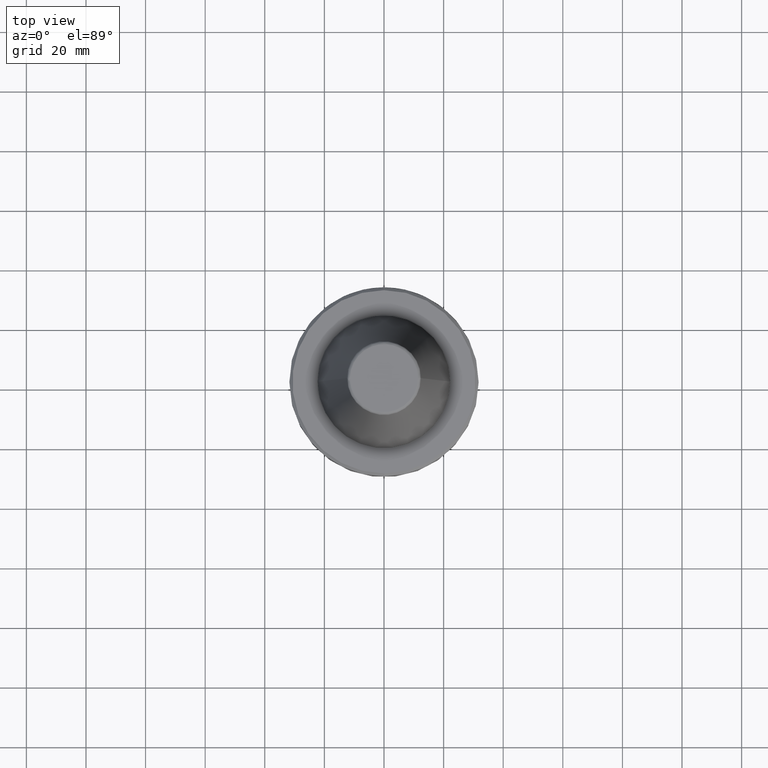
[diagram: clean part render]
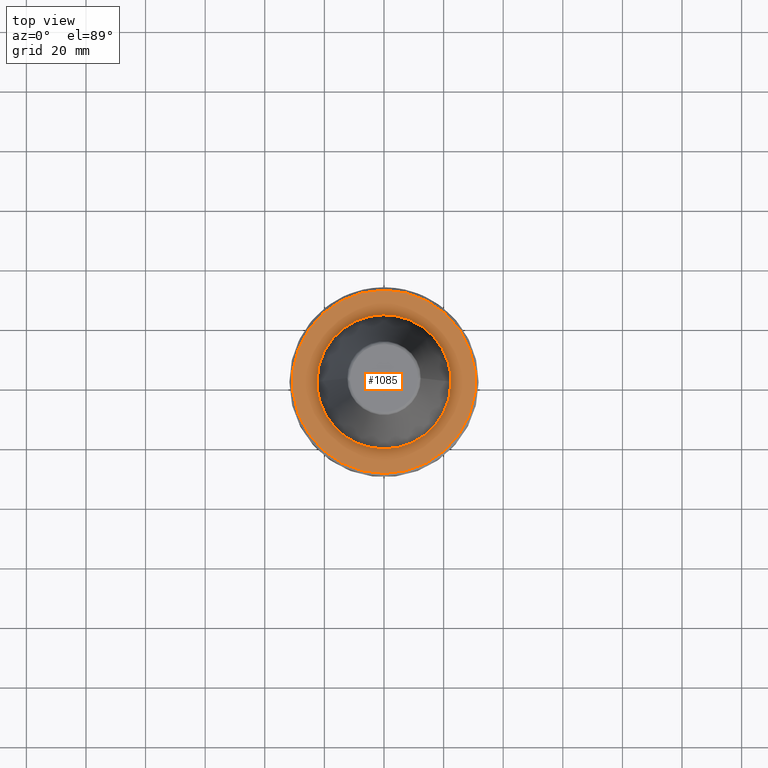
[diagram: same view with one face highlighted and labeled with its STEP entity id]
A machine part, top view. The second image highlights one B-rep face of the part: STEP entity #1085.
In plain terms, the highlighted planar face has unit normal (0, 0, 1).
Its self-contained STEP definition (entity closure, byte-faithful):
#6 = AXIS2_PLACEMENT_3D ( 'NONE', #29, #876, #86 ) ;
#29 = CARTESIAN_POINT ( 'NONE',  ( 0.0000000000000000000, 0.0000000000000000000, -3.200000000000036100 ) ) ;
#43 = DIRECTION ( 'NONE',  ( 1.000000000000000000, 0.0000000000000000000, 0.0000000000000000000 ) ) ;
#86 = DIRECTION ( 'NONE',  ( 1.000000000000000000, 0.0000000000000000000, 0.0000000000000000000 ) ) ;
#118 = EDGE_CURVE ( 'NONE', #1302, #1379, #693, .T. ) ;
#193 = ORIENTED_EDGE ( 'NONE', *, *, #982, .T. ) ;
#273 = EDGE_CURVE ( 'NONE', #1379, #1302, #1393, .T. ) ;
#279 = B_SPLINE_CURVE_WITH_KNOTS ( 'NONE', 3,
 ( #1044, #1045, #1038, #1037, #1036, #1035, #1033, #1032, #1031, #1030, #1028, #1026, #1025, #1022, #1021, #1019, #1018, #1015, #1013, #1012, #1011, #1010, #1009, #1008, #1007, #1006, #1005, #1003, #1000, #997, #993, #991, #988, #987, #985, #983, #981, #980, #975, #973, #972, #971, #969, #968, #967, #965, #964, #963, #962, #961, #958, #955, #953, #951, #950, #948, #946, #944, #943, #942, #941, #937, #936, #933, #931, #929, #928, #926, #923, #922, #921, #918, #917, #916, #915, #913, #912, #910, #908, #905, #902, #901, #898, #897, #896, #895, #894, #893, #892, #891, #890, #889, #888, #882, #881, #880, #878, #877, #875, #874, #872, #870, #869, #867, #866, #864 ),
 .UNSPECIFIED., .F., .F.,
 ( 4, 1, 1, 1, 1, 1, 2, 2, 1, 1, 1, 1, 2, 2, 1, 1, 1, 2, 2, 2, 1, 1, 1, 2, 2, 1, 1, 1, 1, 2, 2, 1, 1, 1, 1, 1, 2, 2, 2, 1, 1, 1, 1, 1, 2, 2, 1, 1, 1, 1, 2, 2, 1, 1, 1, 2, 2, 2, 1, 1, 1, 2, 2, 1, 1, 1, 1, 2, 2, 1, 1, 1, 1, 1, 2, 2, 4 ),
 ( 0.0000000000000000000, 0.03124999999999908400, 0.04687499999999860500, 0.05468749999999836900, 0.05859374999999825800, 0.06054687499999819600, 0.06152343749999818900, 0.06249999999999818200, 0.09374999999999732200, 0.1093749999999968900, 0.1171874999999966700, 0.1210937499999965400, 0.1230468749999965400, 0.1249999999999965300, 0.1562499999999963600, 0.1718749999999962500, 0.1796874999999961700, 0.1835937499999960900, 0.1874999999999960000, 0.2499999999999953400, 0.2812499999999949500, 0.2968749999999948400, 0.3046874999999947800, 0.3085937499999947800, 0.3124999999999947800, 0.3437499999999951200, 0.3593749999999953400, 0.3671874999999953900, 0.3710937499999954500, 0.3730468749999955000, 0.3749999999999955600, 0.4062499999999958400, 0.4218749999999960000, 0.4296874999999960600, 0.4335937499999960600, 0.4355468749999960600, 0.4365234374999960600, 0.4374999999999960000, 0.4999999999999953400, 0.5312499999999950000, 0.5468749999999947800, 0.5546874999999946700, 0.5585937499999946700, 0.5605468749999945600, 0.5615234374999945600, 0.5624999999999944500, 0.5937499999999942300, 0.6093749999999941200, 0.6171874999999940000, 0.6210937499999938900, 0.6230468749999940000, 0.6249999999999940000, 0.6562499999999947800, 0.6718749999999952300, 0.6796874999999954500, 0.6835937499999955600, 0.6874999999999955600, 0.7499999999999982200, 0.7812499999999995600, 0.7968750000000002200, 0.8046875000000005600, 0.8085937500000007800, 0.8125000000000008900, 0.8437500000000022200, 0.8593750000000028900, 0.8671875000000032200, 0.8710937500000033300, 0.8730468750000034400, 0.8750000000000034400, 0.9062500000000028900, 0.9218750000000026600, 0.9296875000000025500, 0.9335937500000024400, 0.9355468750000023300, 0.9365234375000023300, 0.9375000000000022200, 1.000000000000000000 ),
 .UNSPECIFIED. ) ;
#333 = CARTESIAN_POINT ( 'NONE',  ( 22.50000000000000400, 0.0000000000000000000, -3.199999999999999300 ) ) ;
#405 = CARTESIAN_POINT ( 'NONE',  ( -22.50000000000000400, 2.755455298081544800E-015, -3.199999999999999300 ) ) ;
#425 = CARTESIAN_POINT ( 'NONE',  ( 0.0000000000000000000, 30.74999999999994300, -3.200000000000036100 ) ) ;
#458 = DIRECTION ( 'NONE',  ( -0.0000000000000000000, -0.0000000000000000000, 1.000000000000000000 ) ) ;
#484 = CARTESIAN_POINT ( 'NONE',  ( 0.0000000000000000000, 0.0000000000000000000, -3.200000000000036100 ) ) ;
#492 = CARTESIAN_POINT ( 'NONE',  ( 3.827021247335483600E-015, -30.74999999999994300, -3.200000000000036100 ) ) ;
#559 = EDGE_CURVE ( 'NONE', #1419, #1548, #1107, .T. ) ;
#583 = FACE_BOUND ( 'NONE', #1142, .T. ) ;
#610 = ORIENTED_EDGE ( 'NONE', *, *, #118, .T. ) ;
#693 = CIRCLE ( 'NONE', #996, 30.74999999999994300 ) ;
#754 = DIRECTION ( 'NONE',  ( 1.000000000000000000, 0.0000000000000000000, -0.0000000000000000000 ) ) ;
#756 = DIRECTION ( 'NONE',  ( 0.0000000000000000000, 0.0000000000000000000, 1.000000000000000000 ) ) ;
#759 = PLANE ( 'NONE',  #986 ) ;
#812 = CARTESIAN_POINT ( 'NONE',  ( 0.0000000000000000000, 0.0000000000000000000, -3.200000000000000200 ) ) ;
#837 = ORIENTED_EDGE ( 'NONE', *, *, #273, .T. ) ;
#864 = CARTESIAN_POINT ( 'NONE',  ( -22.50000000000000400, 2.755455298081544800E-015, -3.199999999999999300 ) ) ;
#866 = CARTESIAN_POINT ( 'NONE',  ( -22.50000000000000700, -1.376388306158772500, -3.200000000000000600 ) ) ;
#867 = CARTESIAN_POINT ( 'NONE',  ( -22.37479026312430700, -2.741111199249898400, -3.200000000000000600 ) ) ;
#869 = CARTESIAN_POINT ( 'NONE',  ( -22.12045798509555200, -4.115310202398622300, -3.200000000000000200 ) ) ;
#870 = CARTESIAN_POINT ( 'NONE',  ( -22.11603594838243900, -4.139014538617989700, -3.200000000000000600 ) ) ;
#872 = CARTESIAN_POINT ( 'NONE',  ( -22.10760170058084000, -4.183831549485550900, -3.200000000000000200 ) ) ;
#874 = CARTESIAN_POINT ( 'NONE',  ( -22.09485092206732700, -4.251028217309717600, -3.200000000000000600 ) ) ;
#875 = CARTESIAN_POINT ( 'NONE',  ( -22.06440325785796100, -4.407618502892575000, -3.200000000000000200 ) ) ;
#876 = DIRECTION ( 'NONE',  ( -0.0000000000000000000, -0.0000000000000000000, 1.000000000000000000 ) ) ;
#877 = CARTESIAN_POINT ( 'NONE',  ( -22.00072453872795100, -4.719991316697491600, -3.200000000000000600 ) ) ;
#878 = CARTESIAN_POINT ( 'NONE',  ( -21.86223353762273500, -5.341505914864100600, -3.200000000000000600 ) ) ;
#880 = CARTESIAN_POINT ( 'NONE',  ( -21.54071728403163600, -6.571610993424445500, -3.200000000000000600 ) ) ;
#881 = CARTESIAN_POINT ( 'NONE',  ( -21.18878749287234700, -7.603831144579803700, -3.199999999999998800 ) ) ;
#882 = CARTESIAN_POINT ( 'NONE',  ( -20.90345235396920400, -8.324524703927284700, -3.199999999999999700 ) ) ;
#888 = CARTESIAN_POINT ( 'NONE',  ( -20.88510905071626700, -8.370451108368008900, -3.199999999999999700 ) ) ;
#889 = CARTESIAN_POINT ( 'NONE',  ( -20.84958280862066700, -8.458563634144654800, -3.200000000000000600 ) ) ;
#890 = CARTESIAN_POINT ( 'NONE',  ( -20.79589492657008900, -8.590524805360397300, -3.200000000000000200 ) ) ;
#891 = CARTESIAN_POINT ( 'NONE',  ( -20.66783356943510700, -8.896980882719226700, -3.200000000000000200 ) ) ;
#892 = CARTESIAN_POINT ( 'NONE',  ( -20.40055232576401100, -9.504079748858595500, -3.199999999999999700 ) ) ;
#893 = CARTESIAN_POINT ( 'NONE',  ( -19.82135572081725200, -10.69502432682423000, -3.200000000000000600 ) ) ;
#894 = CARTESIAN_POINT ( 'NONE',  ( -19.24838585782649900, -11.67597141482940200, -3.199999999999999700 ) ) ;
#895 = CARTESIAN_POINT ( 'NONE',  ( -18.78040064549380300, -12.39175045570773800, -3.200000000000000600 ) ) ;
#896 = CARTESIAN_POINT ( 'NONE',  ( -18.72563884435658800, -12.47437238289159500, -3.200000000000000200 ) ) ;
#897 = CARTESIAN_POINT ( 'NONE',  ( -18.61742605471202700, -12.63533988221470800, -3.199999999999999700 ) ) ;
#898 = CARTESIAN_POINT ( 'NONE',  ( -18.45365423866372400, -12.87560569879659900, -3.200000000000001100 ) ) ;
#899 = FACE_OUTER_BOUND ( 'NONE', #1042, .T. ) ;
#901 = CARTESIAN_POINT ( 'NONE',  ( -18.06135158014722800, -13.42792791066820300, -3.200000000000000600 ) ) ;
#902 = CARTESIAN_POINT ( 'NONE',  ( -17.23607257883263300, -14.49938022713351800, -3.200000000000000200 ) ) ;
#905 = CARTESIAN_POINT ( 'NONE',  ( -16.45896426179448100, -15.36086717162741000, -3.200000000000001100 ) ) ;
#908 = CARTESIAN_POINT ( 'NONE',  ( -14.81177920650302200, -17.00797338683712900, -3.199999999999999300 ) ) ;
#910 = CARTESIAN_POINT ( 'NONE',  ( -13.61204652640028800, -17.98264380950038800, -3.200000000000000200 ) ) ;
#912 = CARTESIAN_POINT ( 'NONE',  ( -12.23098025896354500, -18.88550870197710900, -3.200000000000000200 ) ) ;
#913 = CARTESIAN_POINT ( 'NONE',  ( -12.15280497094398100, -18.93590339580075400, -3.199999999999999700 ) ) ;
#915 = CARTESIAN_POINT ( 'NONE',  ( -11.99256734168715800, -19.03780993567515600, -3.200000000000000200 ) ) ;
#916 = CARTESIAN_POINT ( 'NONE',  ( -11.75138774876684200, -19.18907189198004900, -3.200000000000000200 ) ) ;
#917 = CARTESIAN_POINT ( 'NONE',  ( -11.18287332204048700, -19.53083148214458500, -3.200000000000000600 ) ) ;
#918 = CARTESIAN_POINT ( 'NONE',  ( -10.02279629560528400, -20.16961076428609100, -3.200000000000000600 ) ) ;
#921 = CARTESIAN_POINT ( 'NONE',  ( -8.988933404976533500, -20.64043889494298900, -3.199999999999999700 ) ) ;
#922 = CARTESIAN_POINT ( 'NONE',  ( -8.237955812652499400, -20.93772414133978200, -3.199999999999999700 ) ) ;
#923 = CARTESIAN_POINT ( 'NONE',  ( -8.197263642347373000, -20.95368502148340900, -3.199999999999999700 ) ) ;
#926 = CARTESIAN_POINT ( 'NONE',  ( -8.112282896148109000, -20.98673507276421500, -3.200000000000000200 ) ) ;
#928 = CARTESIAN_POINT ( 'NONE',  ( -7.984698353444732000, -21.03591195338748700, -3.200000000000000200 ) ) ;
#929 = CARTESIAN_POINT ( 'NONE',  ( -7.686207123305462300, -21.14787063408966000, -3.200000000000000600 ) ) ;
#931 = CARTESIAN_POINT ( 'NONE',  ( -7.086048807701388300, -21.36063849915201700, -3.200000000000001100 ) ) ;
#933 = CARTESIAN_POINT ( 'NONE',  ( -5.873028755191068500, -21.74157624390884200, -3.200000000000001100 ) ) ;
#936 = CARTESIAN_POINT ( 'NONE',  ( -4.811519987949943700, -21.99164062164117100, -3.199999999999999700 ) ) ;
#937 = CARTESIAN_POINT ( 'NONE',  ( -4.071751450877116900, -22.12851860711453300, -3.199999999999999700 ) ) ;
#941 = CARTESIAN_POINT ( 'NONE',  ( -4.051866326836864700, -22.13216683465148900, -3.199999999999999700 ) ) ;
#942 = CARTESIAN_POINT ( 'NONE',  ( -4.009555819172765800, -22.13987114982767300, -3.200000000000000200 ) ) ;
#943 = CARTESIAN_POINT ( 'NONE',  ( -3.946081902448917300, -22.15133589248955200, -3.200000000000000600 ) ) ;
#944 = CARTESIAN_POINT ( 'NONE',  ( -3.797919010166013600, -22.17744484798386800, -3.200000000000001100 ) ) ;
#946 = CARTESIAN_POINT ( 'NONE',  ( -3.501364879224580000, -22.22709431610556100, -3.200000000000000600 ) ) ;
#948 = CARTESIAN_POINT ( 'NONE',  ( -2.907343231839132800, -22.31611948088118800, -3.200000000000000600 ) ) ;
#950 = CARTESIAN_POINT ( 'NONE',  ( -1.715646395057947200, -22.45307472456143200, -3.200000000000000600 ) ) ;
#951 = CARTESIAN_POINT ( 'NONE',  ( -0.6879287486564484900, -22.50001621479418300, -3.200000000000000200 ) ) ;
#953 = CARTESIAN_POINT ( 'NONE',  ( 1.375857497312903900, -22.49996757041163400, -3.199999999999999300 ) ) ;
#955 = CARTESIAN_POINT ( 'NONE',  ( 2.741286511513688400, -22.37475781689234500, -3.199999999999999700 ) ) ;
#958 = CARTESIAN_POINT ( 'NONE',  ( 4.115307463144500100, -22.12045849206793200, -3.200000000000000600 ) ) ;
#961 = CARTESIAN_POINT ( 'NONE',  ( 4.139014538615635200, -22.11603594838316400, -3.200000000000000200 ) ) ;
#962 = CARTESIAN_POINT ( 'NONE',  ( 4.183831549480899500, -22.10760170058227900, -3.200000000000000200 ) ) ;
#963 = CARTESIAN_POINT ( 'NONE',  ( 4.251028217301676900, -22.09485092206981000, -3.200000000000000200 ) ) ;
#964 = CARTESIAN_POINT ( 'NONE',  ( 4.407618502877016700, -22.06440325786277500, -3.200000000000000600 ) ) ;
#965 = CARTESIAN_POINT ( 'NONE',  ( 4.719991316668444600, -22.00072453873692200, -3.200000000000000200 ) ) ;
#967 = CARTESIAN_POINT ( 'NONE',  ( 5.341505914814308500, -21.86223353763812900, -3.199999999999999700 ) ) ;
#968 = CARTESIAN_POINT ( 'NONE',  ( 6.571610993358049800, -21.54071728405216400, -3.200000000000000600 ) ) ;
#969 = CARTESIAN_POINT ( 'NONE',  ( 7.603831144541866000, -21.18878749288407800, -3.200000000000000200 ) ) ;
#971 = CARTESIAN_POINT ( 'NONE',  ( 8.324524703929661500, -20.90345235396846500, -3.200000000000000600 ) ) ;
#972 = CARTESIAN_POINT ( 'NONE',  ( 8.370451108365493600, -20.88510905071769100, -3.200000000000001100 ) ) ;
#973 = CARTESIAN_POINT ( 'NONE',  ( 8.458563634139736100, -20.84958280862343500, -3.200000000000000600 ) ) ;
#975 = CARTESIAN_POINT ( 'NONE',  ( 8.590524805351991600, -20.79589492657481400, -3.199999999999999700 ) ) ;
#978 = ORIENTED_EDGE ( 'NONE', *, *, #559, .T. ) ;
#980 = CARTESIAN_POINT ( 'NONE',  ( 8.896980882703543300, -20.66783356944393200, -3.199999999999999300 ) ) ;
#981 = CARTESIAN_POINT ( 'NONE',  ( 9.504079748831721000, -20.40055232577914500, -3.200000000000000600 ) ) ;
#982 = EDGE_CURVE ( 'NONE', #1548, #1419, #279, .T. ) ;
#983 = CARTESIAN_POINT ( 'NONE',  ( 10.69502432678837800, -19.82135572083744200, -3.199999999999999700 ) ) ;
#985 = CARTESIAN_POINT ( 'NONE',  ( 11.67597141480891300, -19.24838585783804100, -3.200000000000000600 ) ) ;
#986 = AXIS2_PLACEMENT_3D ( 'NONE', #812, #756, #754 ) ;
#987 = CARTESIAN_POINT ( 'NONE',  ( 12.39175045571029600, -18.78040064549236700, -3.200000000000000200 ) ) ;
#988 = CARTESIAN_POINT ( 'NONE',  ( 12.47437238289376500, -18.72563884435562500, -3.200000000000000600 ) ) ;
#991 = CARTESIAN_POINT ( 'NONE',  ( 12.63533988221884200, -18.61742605471019700, -3.200000000000000200 ) ) ;
#993 = CARTESIAN_POINT ( 'NONE',  ( 12.87560569880346700, -18.45365423866068300, -3.200000000000000600 ) ) ;
#996 = AXIS2_PLACEMENT_3D ( 'NONE', #484, #458, #43 ) ;
#997 = CARTESIAN_POINT ( 'NONE',  ( 13.42792791067997600, -18.06135158014202000, -3.199999999999999700 ) ) ;
#1000 = CARTESIAN_POINT ( 'NONE',  ( 14.49938022714922100, -17.23607257882569900, -3.199999999999999300 ) ) ;
#1001 = CARTESIAN_POINT ( 'NONE',  ( -21.36063849916189700, 7.086048807666240500, -3.199999999999999300 ) ) ;
#1003 = CARTESIAN_POINT ( 'NONE',  ( 15.36086717163637700, -16.45896426179050900, -3.199999999999999700 ) ) ;
#1005 = CARTESIAN_POINT ( 'NONE',  ( 17.00797338681919900, -14.81177920651095200, -3.200000000000000600 ) ) ;
#1006 = CARTESIAN_POINT ( 'NONE',  ( 17.98264380952407700, -13.61204652636657500, -3.199999999999999700 ) ) ;
#1007 = CARTESIAN_POINT ( 'NONE',  ( 18.88550870197563500, -12.23098025896565000, -3.200000000000000200 ) ) ;
#1008 = CARTESIAN_POINT ( 'NONE',  ( 18.93590339580105900, -12.15280497094321500, -3.200000000000000200 ) ) ;
#1009 = CARTESIAN_POINT ( 'NONE',  ( 19.03780993567572800, -11.99256734168571200, -3.200000000000000200 ) ) ;
#1010 = CARTESIAN_POINT ( 'NONE',  ( 19.18907189198100100, -11.75138774876444200, -3.200000000000001100 ) ) ;
#1011 = CARTESIAN_POINT ( 'NONE',  ( 19.53083148214621900, -11.18287332203636600, -3.200000000000000200 ) ) ;
#1012 = CARTESIAN_POINT ( 'NONE',  ( 20.16961076428826500, -10.02279629559978100, -3.199999999999998800 ) ) ;
#1013 = CARTESIAN_POINT ( 'NONE',  ( 20.64043889494423200, -8.988933404973398200, -3.200000000000001100 ) ) ;
#1015 = CARTESIAN_POINT ( 'NONE',  ( 20.93772414133970000, -8.237955812652693100, -3.200000000000000200 ) ) ;
#1018 = CARTESIAN_POINT ( 'NONE',  ( 20.95368502148340500, -8.197263642347369500, -3.199999999999999700 ) ) ;
#1019 = CARTESIAN_POINT ( 'NONE',  ( 20.98673507276421500, -8.112282896148103700, -3.200000000000000200 ) ) ;
#1021 = CARTESIAN_POINT ( 'NONE',  ( 21.03591195338748300, -7.984698353444730200, -3.199999999999999300 ) ) ;
#1022 = CARTESIAN_POINT ( 'NONE',  ( 21.14787063408966400, -7.686207123305460500, -3.200000000000000600 ) ) ;
#1025 = CARTESIAN_POINT ( 'NONE',  ( 21.36063849915200700, -7.086048807701382100, -3.199999999999998800 ) ) ;
#1026 = CARTESIAN_POINT ( 'NONE',  ( 21.74157624390884500, -5.873028755191072900, -3.200000000000000200 ) ) ;
#1028 = CARTESIAN_POINT ( 'NONE',  ( 21.99164062164117800, -4.811519987949947300, -3.200000000000000600 ) ) ;
#1030 = CARTESIAN_POINT ( 'NONE',  ( 22.12851860711453600, -4.071751450877114200, -3.200000000000000200 ) ) ;
#1031 = CARTESIAN_POINT ( 'NONE',  ( 22.13216582914422800, -4.051871761185046800, -3.199999999999999300 ) ) ;
#1032 = CARTESIAN_POINT ( 'NONE',  ( 22.13986916256529000, -4.009566559498702000, -3.199999999999999300 ) ) ;
#1033 = CARTESIAN_POINT ( 'NONE',  ( 22.15133245634663300, -3.946100473371058700, -3.199999999999999700 ) ) ;
#1035 = CARTESIAN_POINT ( 'NONE',  ( 22.17743819738469600, -3.797954953886299600, -3.200000000000000600 ) ) ;
#1036 = CARTESIAN_POINT ( 'NONE',  ( 22.22708190165376200, -3.501431974169107800, -3.200000000000000200 ) ) ;
#1037 = CARTESIAN_POINT ( 'NONE',  ( 22.31609819896382200, -2.907458251744042200, -3.200000000000000600 ) ) ;
#1038 = CARTESIAN_POINT ( 'NONE',  ( 22.45304634867161300, -1.715799754931167900, -3.200000000000000200 ) ) ;
#1042 = EDGE_LOOP ( 'NONE', ( #837, #610 ) ) ;
#1044 = CARTESIAN_POINT ( 'NONE',  ( 22.50000000000000400, 0.0000000000000000000, -3.199999999999999300 ) ) ;
#1045 = CARTESIAN_POINT ( 'NONE',  ( 22.49999999999999600, -0.6880163828697204400, -3.199999999999998800 ) ) ;
#1085 = ADVANCED_FACE ( 'NONE', ( #583, #899 ), #759, .T. ) ;
#1107 = B_SPLINE_CURVE_WITH_KNOTS ( 'NONE', 3,
 ( #1552, #1508, #1512, #1507, #1505, #1504, #1534, #1532, #1530, #1529, #1527, #1526, #1001, #1560, #1503, #1502, #1501, #1500, #1498, #1496, #1495, #1491, #1488, #1487, #1485, #1484, #1483, #1481, #1479, #1478, #1477, #1475, #1472, #1470, #1468, #1467, #1465, #1463, #1462, #1458, #1457, #1456, #1455, #1454, #1453, #1451, #1450, #1448, #1446, #1444, #1440, #1436, #1435, #1434, #1433, #1432, #1431, #1430, #1429, #1427, #1426, #1425, #1421, #1420, #1417, #1416, #1413, #1411, #1409, #1408, #1407, #1406, #1405, #1403, #1401, #1399, #1398, #1396, #1394, #1391, #1389, #1388, #1387, #1386, #1385, #1381, #1380, #1378, #1376, #1375, #1373, #1371, #1369, #1368, #1367, #1366, #1365, #1364, #1363, #1360, #1358, #1356, #1353, #1351, #1350, #1349 ),
 .UNSPECIFIED., .F., .F.,
 ( 4, 1, 1, 1, 1, 1, 2, 2, 1, 1, 1, 1, 2, 2, 1, 1, 1, 2, 2, 2, 1, 1, 1, 2, 2, 1, 1, 1, 1, 2, 2, 1, 1, 1, 1, 1, 2, 2, 2, 1, 1, 1, 1, 1, 2, 2, 1, 1, 1, 1, 2, 2, 1, 1, 1, 2, 2, 2, 1, 1, 1, 2, 2, 1, 1, 1, 1, 2, 2, 1, 1, 1, 1, 1, 2, 2, 4 ),
 ( 0.0000000000000000000, 0.03124999999999839000, 0.04687499999999758500, 0.05468749999999717600, 0.05859374999999699500, 0.06054687499999689800, 0.06152343749999685700, 0.06249999999999680800, 0.09374999999999644700, 0.1093749999999962800, 0.1171874999999962000, 0.1210937499999961300, 0.1230468749999961400, 0.1249999999999961400, 0.1562499999999958900, 0.1718749999999958400, 0.1796874999999957800, 0.1835937499999957800, 0.1874999999999957800, 0.2499999999999961100, 0.2812499999999963400, 0.2968749999999964500, 0.3046874999999965000, 0.3085937499999965600, 0.3124999999999965600, 0.3437499999999969500, 0.3593749999999971700, 0.3671874999999973400, 0.3710937499999974500, 0.3730468749999974500, 0.3749999999999974500, 0.4062499999999965000, 0.4218749999999960000, 0.4296874999999957800, 0.4335937499999956700, 0.4355468749999956100, 0.4365234374999956100, 0.4374999999999956100, 0.4999999999999944500, 0.5312499999999938900, 0.5468749999999936700, 0.5546874999999936700, 0.5585937499999935600, 0.5605468749999935600, 0.5615234374999934500, 0.5624999999999934500, 0.5937499999999932300, 0.6093749999999931200, 0.6171874999999931200, 0.6210937499999930100, 0.6230468749999930100, 0.6249999999999930100, 0.6562499999999930100, 0.6718749999999931200, 0.6796874999999932300, 0.6835937499999932300, 0.6874999999999932300, 0.7499999999999935600, 0.7812499999999936700, 0.7968749999999937800, 0.8046874999999938900, 0.8085937499999938900, 0.8124999999999938900, 0.8437499999999942300, 0.8593749999999944500, 0.8671874999999946700, 0.8710937499999947800, 0.8730468749999948900, 0.8749999999999950000, 0.9062499999999963400, 0.9218749999999971100, 0.9296874999999975600, 0.9335937499999976700, 0.9355468749999977800, 0.9365234374999977800, 0.9374999999999978900, 1.000000000000000000 ),
 .UNSPECIFIED. ) ;
#1142 = EDGE_LOOP ( 'NONE', ( #978, #193 ) ) ;
#1302 = VERTEX_POINT ( 'NONE', #492 ) ;
#1349 = CARTESIAN_POINT ( 'NONE',  ( 22.50000000000000400, 0.0000000000000000000, -3.199999999999999300 ) ) ;
#1350 = CARTESIAN_POINT ( 'NONE',  ( 22.50000000000000400, 1.376388306145680500, -3.200000000000000200 ) ) ;
#1351 = CARTESIAN_POINT ( 'NONE',  ( 22.37479026312431400, 2.741111199236805400, -3.200000000000000600 ) ) ;
#1353 = CARTESIAN_POINT ( 'NONE',  ( 22.12045798509555900, 4.115310202398825700, -3.200000000000000600 ) ) ;
#1356 = CARTESIAN_POINT ( 'NONE',  ( 22.11603594838275600, 4.139014538616730300, -3.200000000000001100 ) ) ;
#1358 = CARTESIAN_POINT ( 'NONE',  ( 22.10760170058146200, 4.183831549483062200, -3.200000000000000200 ) ) ;
#1360 = CARTESIAN_POINT ( 'NONE',  ( 22.09485092206839200, 4.251028217305421500, -3.199999999999999700 ) ) ;
#1363 = CARTESIAN_POINT ( 'NONE',  ( 22.06440325786003600, 4.407618502884258900, -3.200000000000000200 ) ) ;
#1364 = CARTESIAN_POINT ( 'NONE',  ( 22.00072453873180600, 4.719991316681966300, -3.200000000000000200 ) ) ;
#1365 = CARTESIAN_POINT ( 'NONE',  ( 21.86223353762935800, 5.341505914837489000, -3.200000000000000600 ) ) ;
#1366 = CARTESIAN_POINT ( 'NONE',  ( 21.54071728404044400, 6.571610993388965500, -3.200000000000000200 ) ) ;
#1367 = CARTESIAN_POINT ( 'NONE',  ( 21.18878749287739200, 7.603831144559534600, -3.200000000000000600 ) ) ;
#1368 = CARTESIAN_POINT ( 'NONE',  ( 20.90345235396888100, 8.324524703928553000, -3.200000000000000200 ) ) ;
#1369 = CARTESIAN_POINT ( 'NONE',  ( 20.88510905071724400, 8.370451108366499000, -3.200000000000001100 ) ) ;
#1371 = CARTESIAN_POINT ( 'NONE',  ( 20.84958280862257900, 8.458563634141711400, -3.200000000000000200 ) ) ;
#1373 = CARTESIAN_POINT ( 'NONE',  ( 20.79589492657334300, 8.590524805355373800, -3.199999999999999300 ) ) ;
#1375 = CARTESIAN_POINT ( 'NONE',  ( 20.66783356944120300, 8.896980882709847500, -3.200000000000000200 ) ) ;
#1376 = CARTESIAN_POINT ( 'NONE',  ( 20.40055232577446300, 9.504079748842523000, -3.200000000000000600 ) ) ;
#1378 = CARTESIAN_POINT ( 'NONE',  ( 19.82135572083119300, 10.69502432680279600, -3.200000000000000600 ) ) ;
#1379 = VERTEX_POINT ( 'NONE', #425 ) ;
#1380 = CARTESIAN_POINT ( 'NONE',  ( 19.24838585783446000, 11.67597141481715200, -3.199999999999999700 ) ) ;
#1381 = CARTESIAN_POINT ( 'NONE',  ( 18.78040064549280100, 12.39175045570927500, -3.199999999999998800 ) ) ;
#1385 = CARTESIAN_POINT ( 'NONE',  ( 18.72563884435662000, 12.47437238289156800, -3.199999999999999300 ) ) ;
#1386 = CARTESIAN_POINT ( 'NONE',  ( 18.61742605471209400, 12.63533988221464600, -3.199999999999999700 ) ) ;
#1387 = CARTESIAN_POINT ( 'NONE',  ( 18.45365423866382000, 12.87560569879649600, -3.200000000000000200 ) ) ;
#1388 = CARTESIAN_POINT ( 'NONE',  ( 18.06135158014742400, 13.42792791066801300, -3.200000000000000600 ) ) ;
#1389 = CARTESIAN_POINT ( 'NONE',  ( 17.23607257883289300, 14.49938022713325700, -3.200000000000000200 ) ) ;
#1391 = CARTESIAN_POINT ( 'NONE',  ( 16.45896426179462000, 15.36086717162726200, -3.199999999999999700 ) ) ;
#1393 = CIRCLE ( 'NONE', #6, 30.74999999999994300 ) ;
#1394 = CARTESIAN_POINT ( 'NONE',  ( 14.81177920650271000, 17.00797338683744500, -3.200000000000000600 ) ) ;
#1396 = CARTESIAN_POINT ( 'NONE',  ( 13.61204652639695000, 17.98264380950372400, -3.200000000000000200 ) ) ;
#1398 = CARTESIAN_POINT ( 'NONE',  ( 12.23098025896375600, 18.88550870197690300, -3.199999999999999700 ) ) ;
#1399 = CARTESIAN_POINT ( 'NONE',  ( 12.15280497093997500, 18.93590339580323000, -3.200000000000000200 ) ) ;
#1401 = CARTESIAN_POINT ( 'NONE',  ( 11.99256734167953400, 19.03780993567986700, -3.199999999999999300 ) ) ;
#1403 = CARTESIAN_POINT ( 'NONE',  ( 11.75138774875418000, 19.18907189198790100, -3.200000000000001100 ) ) ;
#1405 = CARTESIAN_POINT ( 'NONE',  ( 11.18287332201877700, 19.53083148215803900, -3.200000000000000600 ) ) ;
#1406 = CARTESIAN_POINT ( 'NONE',  ( 10.02279629557633300, 20.16961076430403600, -3.200000000000000600 ) ) ;
#1407 = CARTESIAN_POINT ( 'NONE',  ( 8.988933404959995600, 20.64043889495324200, -3.200000000000000600 ) ) ;
#1408 = CARTESIAN_POINT ( 'NONE',  ( 8.237955812653522600, 20.93772414133914200, -3.199999999999999700 ) ) ;
#1409 = CARTESIAN_POINT ( 'NONE',  ( 8.197263642342381500, 20.95368502148494400, -3.199999999999999700 ) ) ;
#1411 = CARTESIAN_POINT ( 'NONE',  ( 8.112282896138385300, 20.98673507276721400, -3.200000000000000200 ) ) ;
#1413 = CARTESIAN_POINT ( 'NONE',  ( 7.984698353428139100, 21.03591195339260300, -3.200000000000000200 ) ) ;
#1416 = CARTESIAN_POINT ( 'NONE',  ( 7.686207123274499500, 21.14787063409919600, -3.200000000000000600 ) ) ;
#1417 = CARTESIAN_POINT ( 'NONE',  ( 7.086048807648322300, 21.36063849916836300, -3.200000000000000600 ) ) ;
#1419 = VERTEX_POINT ( 'NONE', #405 ) ;
#1420 = CARTESIAN_POINT ( 'NONE',  ( 5.873028755120320600, 21.74157624393063400, -3.200000000000000600 ) ) ;
#1421 = CARTESIAN_POINT ( 'NONE',  ( 4.811519987909519200, 21.99164062165363400, -3.200000000000000200 ) ) ;
#1425 = CARTESIAN_POINT ( 'NONE',  ( 4.071751450878374500, 22.12851860711415200, -3.200000000000000200 ) ) ;
#1426 = CARTESIAN_POINT ( 'NONE',  ( 4.051866326834534100, 22.13216683465163800, -3.200000000000001100 ) ) ;
#1427 = CARTESIAN_POINT ( 'NONE',  ( 4.009555819168163300, 22.13987114982794000, -3.199999999999999700 ) ) ;
#1429 = CARTESIAN_POINT ( 'NONE',  ( 3.946081902440961000, 22.15133589249003200, -3.200000000000000600 ) ) ;
#1430 = CARTESIAN_POINT ( 'NONE',  ( 3.797919010150632600, 22.17744484798479100, -3.200000000000000600 ) ) ;
#1431 = CARTESIAN_POINT ( 'NONE',  ( 3.501364879195867800, 22.22709431610727600, -3.200000000000000600 ) ) ;
#1432 = CARTESIAN_POINT ( 'NONE',  ( 2.907343231789928200, 22.31611948088413700, -3.200000000000001100 ) ) ;
#1433 = CARTESIAN_POINT ( 'NONE',  ( 1.715646394992351700, 22.45307472456536100, -3.200000000000000600 ) ) ;
#1434 = CARTESIAN_POINT ( 'NONE',  ( 0.6879287486189594700, 22.50001621479642500, -3.199999999999999300 ) ) ;
#1435 = CARTESIAN_POINT ( 'NONE',  ( -1.375857497237935400, 22.49996757040714000, -3.199999999999999700 ) ) ;
#1436 = CARTESIAN_POINT ( 'NONE',  ( -2.741286511587084400, 22.37475781688785000, -3.200000000000000200 ) ) ;
#1440 = CARTESIAN_POINT ( 'NONE',  ( -4.115307463143350800, 22.12045849206799600, -3.199999999999999700 ) ) ;
#1444 = CARTESIAN_POINT ( 'NONE',  ( -4.139014538617297000, 22.11603594838256000, -3.200000000000000200 ) ) ;
#1446 = CARTESIAN_POINT ( 'NONE',  ( -4.183831549484186700, 22.10760170058108200, -3.199999999999999700 ) ) ;
#1448 = CARTESIAN_POINT ( 'NONE',  ( -4.251028217307362100, 22.09485092206773900, -3.200000000000001100 ) ) ;
#1450 = CARTESIAN_POINT ( 'NONE',  ( -4.407618502888016800, 22.06440325785875700, -3.199999999999999300 ) ) ;
#1451 = CARTESIAN_POINT ( 'NONE',  ( -4.719991316688983800, 22.00072453872944300, -3.200000000000000600 ) ) ;
#1453 = CARTESIAN_POINT ( 'NONE',  ( -5.341505914849514100, 21.86223353762529300, -3.200000000000000600 ) ) ;
#1454 = CARTESIAN_POINT ( 'NONE',  ( -6.571610993404996200, 21.54071728403503300, -3.199999999999999700 ) ) ;
#1455 = CARTESIAN_POINT ( 'NONE',  ( -7.603831144568696100, 21.18878749287429700, -3.200000000000000200 ) ) ;
#1456 = CARTESIAN_POINT ( 'NONE',  ( -8.324524703927975700, 20.90345235396907600, -3.199999999999999700 ) ) ;
#1457 = CARTESIAN_POINT ( 'NONE',  ( -8.370451108366790300, 20.88510905071707000, -3.200000000000000200 ) ) ;
#1458 = CARTESIAN_POINT ( 'NONE',  ( -8.458563634142274500, 20.84958280862222700, -3.200000000000000200 ) ) ;
#1462 = CARTESIAN_POINT ( 'NONE',  ( -8.590524805356333000, 20.79589492657273900, -3.199999999999999700 ) ) ;
#1463 = CARTESIAN_POINT ( 'NONE',  ( -8.896980882711639900, 20.66783356944006700, -3.199999999999999700 ) ) ;
#1465 = CARTESIAN_POINT ( 'NONE',  ( -9.504079748845599700, 20.40055232577251900, -3.200000000000001500 ) ) ;
#1467 = CARTESIAN_POINT ( 'NONE',  ( -10.69502432680689100, 19.82135572082859200, -3.200000000000000600 ) ) ;
#1468 = CARTESIAN_POINT ( 'NONE',  ( -11.67597141481949700, 19.24838585783297900, -3.200000000000001100 ) ) ;
#1470 = CARTESIAN_POINT ( 'NONE',  ( -12.39175045570897300, 18.78040064549299600, -3.199999999999999700 ) ) ;
#1472 = CARTESIAN_POINT ( 'NONE',  ( -12.47437238289334600, 18.72563884435544800, -3.200000000000000200 ) ) ;
#1475 = CARTESIAN_POINT ( 'NONE',  ( -12.63533988221804100, 18.61742605470986000, -3.200000000000000200 ) ) ;
#1477 = CARTESIAN_POINT ( 'NONE',  ( -12.87560569880213800, 18.45365423866010000, -3.200000000000001100 ) ) ;
#1478 = CARTESIAN_POINT ( 'NONE',  ( -13.42792791067768300, 18.06135158014102500, -3.200000000000000200 ) ) ;
#1479 = CARTESIAN_POINT ( 'NONE',  ( -14.49938022714616500, 17.23607257882436300, -3.199999999999999700 ) ) ;
#1481 = CARTESIAN_POINT ( 'NONE',  ( -15.36086717163463800, 16.45896426178976300, -3.200000000000001100 ) ) ;
#1483 = CARTESIAN_POINT ( 'NONE',  ( -17.00797338682269500, 14.81177920651246400, -3.200000000000000600 ) ) ;
#1484 = CARTESIAN_POINT ( 'NONE',  ( -17.98264380950361400, 13.61204652639205500, -3.199999999999999700 ) ) ;
#1485 = CARTESIAN_POINT ( 'NONE',  ( -18.88550870197691400, 12.23098025896405400, -3.200000000000000200 ) ) ;
#1487 = CARTESIAN_POINT ( 'NONE',  ( -18.93590339580232400, 12.15280497094196100, -3.199999999999999700 ) ) ;
#1488 = CARTESIAN_POINT ( 'NONE',  ( -19.03780993567813700, 11.99256734168333200, -3.200000000000000200 ) ) ;
#1491 = CARTESIAN_POINT ( 'NONE',  ( -19.18907189198502300, 11.75138774876048900, -3.200000000000000600 ) ) ;
#1495 = CARTESIAN_POINT ( 'NONE',  ( -19.53083148215308600, 11.18287332202958400, -3.199999999999999300 ) ) ;
#1496 = CARTESIAN_POINT ( 'NONE',  ( -20.16961076429744200, 10.02279629559074100, -3.199999999999999300 ) ) ;
#1498 = CARTESIAN_POINT ( 'NONE',  ( -20.64043889494947600, 8.988933404968230800, -3.200000000000000600 ) ) ;
#1500 = CARTESIAN_POINT ( 'NONE',  ( -20.93772414133938800, 8.237955812653009200, -3.200000000000000200 ) ) ;
#1501 = CARTESIAN_POINT ( 'NONE',  ( -20.95368502148434700, 8.197263642344069000, -3.199999999999999300 ) ) ;
#1502 = CARTESIAN_POINT ( 'NONE',  ( -20.98673507276603100, 8.112282896141666200, -3.200000000000000600 ) ) ;
#1503 = CARTESIAN_POINT ( 'NONE',  ( -21.03591195339058500, 7.984698353433742600, -3.200000000000000600 ) ) ;
#1504 = CARTESIAN_POINT ( 'NONE',  ( -22.17743819738468900, 3.797954953880907400, -3.199999999999999700 ) ) ;
#1505 = CARTESIAN_POINT ( 'NONE',  ( -22.22708190165376200, 3.501431974159047400, -3.199999999999999700 ) ) ;
#1507 = CARTESIAN_POINT ( 'NONE',  ( -22.31609819896381800, 2.907458251726792000, -3.199999999999999700 ) ) ;
#1508 = CARTESIAN_POINT ( 'NONE',  ( -22.50000000000000700, 0.6880163828565797300, -3.200000000000001100 ) ) ;
#1512 = CARTESIAN_POINT ( 'NONE',  ( -22.45304634867162000, 1.715799754908170300, -3.200000000000000600 ) ) ;
#1526 = CARTESIAN_POINT ( 'NONE',  ( -21.74157624392201900, 5.873028755144217100, -3.200000000000000200 ) ) ;
#1527 = CARTESIAN_POINT ( 'NONE',  ( -21.99164062164871000, 4.811519987923173100, -3.200000000000001100 ) ) ;
#1529 = CARTESIAN_POINT ( 'NONE',  ( -22.12851860711429500, 4.071751450877952600, -3.199999999999999300 ) ) ;
#1530 = CARTESIAN_POINT ( 'NONE',  ( -22.13216582914423100, 4.051871761184235000, -3.200000000000000200 ) ) ;
#1532 = CARTESIAN_POINT ( 'NONE',  ( -22.13986916256529700, 4.009566559497096200, -3.200000000000000200 ) ) ;
#1534 = CARTESIAN_POINT ( 'NONE',  ( -22.15133245634663700, 3.946100473368277900, -3.200000000000000200 ) ) ;
#1548 = VERTEX_POINT ( 'NONE', #333 ) ;
#1552 = CARTESIAN_POINT ( 'NONE',  ( -22.50000000000000400, 2.755455298081544800E-015, -3.199999999999999300 ) ) ;
#1560 = CARTESIAN_POINT ( 'NONE',  ( -21.14787063409543700, 7.686207123284956900, -3.200000000000000200 ) ) ;